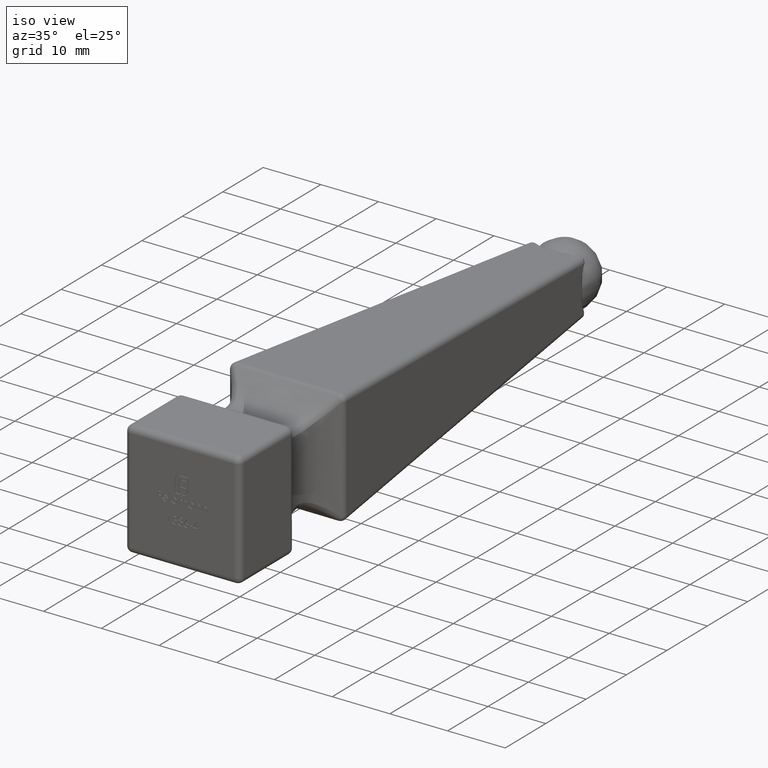
[diagram: clean part render]
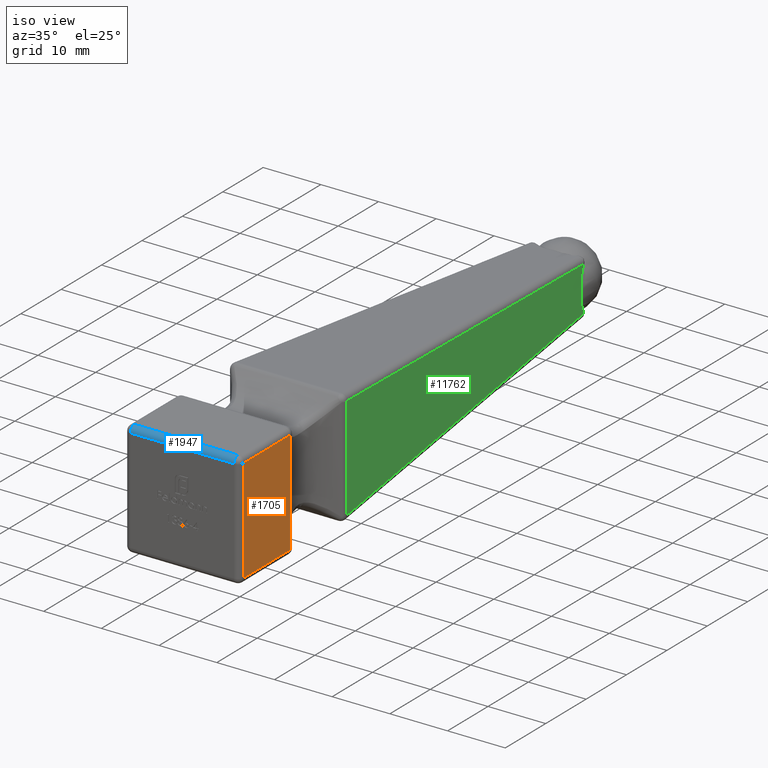
[diagram: same view with three faces highlighted in distinct colors, each labeled with its STEP entity id]
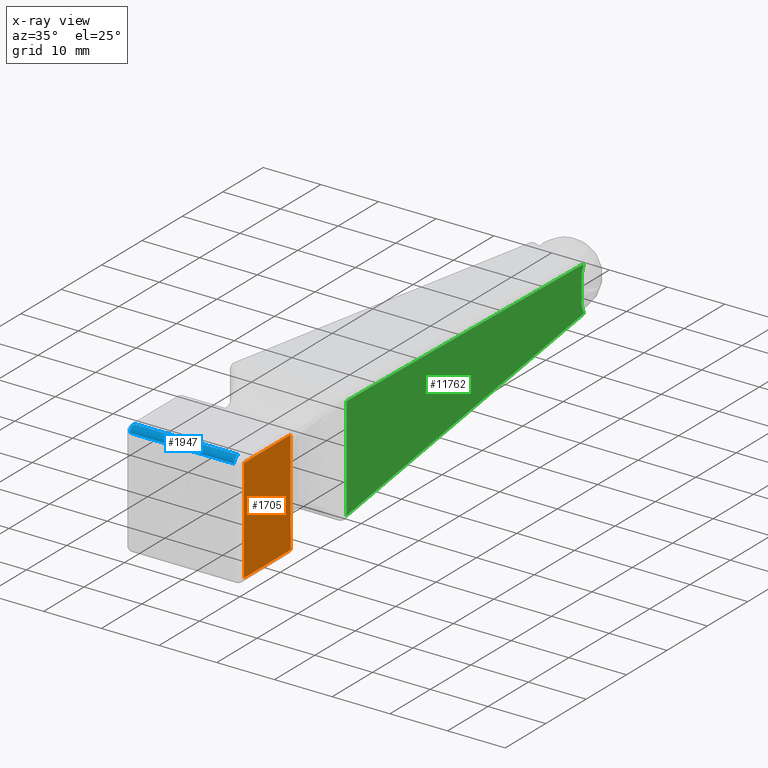
[diagram: x-ray of the same camera — body ghosted, the three highlighted faces saturated]
A machine part, iso view with three faces highlighted in distinct colors.
The next image is the same camera in x-ray (body ghosted, the three faces saturated) — at least one of them is partly hidden behind the body in this view.
Their STEP definitions:

[orange] entity #1705 — the highlighted planar face has unit normal (-1, 0, 0).
#450 = VERTEX_POINT ( 'NONE', #3818 ) ;
#1346 = DIRECTION ( 'NONE',  ( -1.000000000000000000, 0.000000000000000000, 8.673617379884037937E-17 ) ) ;
#1498 = CARTESIAN_POINT ( 'NONE',  ( 10.00000000000000000, -37.42934587424612403, 3.000000000000000888 ) ) ;
#1619 = CARTESIAN_POINT ( 'NONE',  ( 10.00000000000000178, -37.00000000000000711, 9.000000000000000000 ) ) ;
#1655 = ORIENTED_EDGE ( 'NONE', *, *, #13053, .T. ) ;
#1705 = ADVANCED_FACE ( 'NONE', ( #14546 ), #6164, .F. ) ;
#2426 = CARTESIAN_POINT ( 'NONE',  ( 10.00000000000000000, -49.00000000000000000, -9.000000000000001776 ) ) ;
#2587 = CARTESIAN_POINT ( 'NONE',  ( 10.00000000000000000, -37.42934587424612403, -9.000000000000001776 ) ) ;
#2790 = EDGE_CURVE ( 'NONE', #450, #5360, #4234, .T. ) ;
#3652 = B_SPLINE_CURVE_WITH_KNOTS ( 'NONE', 3,
 ( #2587, #13545, #1498, #9943 ),
 .UNSPECIFIED., .F., .F.,
 ( 4, 4 ),
 ( 0.000000000000000000, 0.01800000000000000211 ),
 .UNSPECIFIED. ) ;
#3818 = CARTESIAN_POINT ( 'NONE',  ( 10.00000000000000178, -37.42934587424628745, 9.000000000000000000 ) ) ;
#4234 = LINE ( 'NONE', #1619, #8206 ) ;
#5148 = EDGE_CURVE ( 'NONE', #14671, #11442, #11233, .T. ) ;
#5328 = AXIS2_PLACEMENT_3D ( 'NONE', #8545, #1346, #8601 ) ;
#5360 = VERTEX_POINT ( 'NONE', #6105 ) ;
#6105 = CARTESIAN_POINT ( 'NONE',  ( 10.00000000000000178, -49.00000000000000000, 9.000000000000000000 ) ) ;
#6164 = PLANE ( 'NONE',  #5328 ) ;
#6581 = ORIENTED_EDGE ( 'NONE', *, *, #2790, .T. ) ;
#7312 = DIRECTION ( 'NONE',  ( -8.673617379884037937E-17, 0.000000000000000000, -1.000000000000000000 ) ) ;
#7746 = CARTESIAN_POINT ( 'NONE',  ( 10.00000000000000000, -37.42934587424612403, -9.000000000000001776 ) ) ;
#7898 = EDGE_LOOP ( 'NONE', ( #6581, #12839, #15426, #1655 ) ) ;
#8206 = VECTOR ( 'NONE', #11487, 1000.000000000000000 ) ;
#8518 = EDGE_CURVE ( 'NONE', #5360, #14671, #14365, .T. ) ;
#8545 = CARTESIAN_POINT ( 'NONE',  ( 10.00000000000000000, -37.00000000000000711, -10.00000000000000000 ) ) ;
#8601 = DIRECTION ( 'NONE',  ( 8.673617379884037937E-17, 0.000000000000000000, 1.000000000000000000 ) ) ;
#9114 = CARTESIAN_POINT ( 'NONE',  ( 10.00000000000000000, -37.00000000000000711, -9.000000000000001776 ) ) ;
#9943 = CARTESIAN_POINT ( 'NONE',  ( 10.00000000000000178, -37.42934587424628745, 9.000000000000000000 ) ) ;
#10075 = VECTOR ( 'NONE', #15215, 1000.000000000000000 ) ;
#10790 = VECTOR ( 'NONE', #7312, 1000.000000000000000 ) ;
#11233 = LINE ( 'NONE', #9114, #10075 ) ;
#11442 = VERTEX_POINT ( 'NONE', #7746 ) ;
#11487 = DIRECTION ( 'NONE',  ( 0.000000000000000000, -1.000000000000000000, 0.000000000000000000 ) ) ;
#11992 = CARTESIAN_POINT ( 'NONE',  ( 10.00000000000000000, -49.00000000000000000, -10.00000000000000000 ) ) ;
#12839 = ORIENTED_EDGE ( 'NONE', *, *, #8518, .T. ) ;
#13053 = EDGE_CURVE ( 'NONE', #11442, #450, #3652, .T. ) ;
#13545 = CARTESIAN_POINT ( 'NONE',  ( 9.999999999999998224, -37.42934587424612403, -3.000000000000000888 ) ) ;
#14365 = LINE ( 'NONE', #11992, #10790 ) ;
#14546 = FACE_OUTER_BOUND ( 'NONE', #7898, .T. ) ;
#14671 = VERTEX_POINT ( 'NONE', #2426 ) ;
#15215 = DIRECTION ( 'NONE',  ( -0.000000000000000000, 1.000000000000000000, -0.000000000000000000 ) ) ;
#15426 = ORIENTED_EDGE ( 'NONE', *, *, #5148, .T. ) ;

[blue] entity #1947 — the highlighted cylindrical surface (edge-blend (fillet) strip) has radius 1 mm, axis along (1, -0, 0).
#79 = DIRECTION ( 'NONE',  ( 1.000000000000000000, -0.000000000000000000, 0.000000000000000000 ) ) ;
#898 = ORIENTED_EDGE ( 'NONE', *, *, #9177, .T. ) ;
#1140 = CYLINDRICAL_SURFACE ( 'NONE', #2593, 1.000000000000000888 ) ;
#1212 = DIRECTION ( 'NONE',  ( -1.000000000000000000, 0.000000000000000000, 0.000000000000000000 ) ) ;
#1399 = DIRECTION ( 'NONE',  ( -1.000000000000000000, 0.000000000000000000, -0.000000000000000000 ) ) ;
#1438 = VERTEX_POINT ( 'NONE', #5401 ) ;
#1621 = EDGE_CURVE ( 'NONE', #10757, #1438, #9071, .T. ) ;
#1947 = ADVANCED_FACE ( 'NONE', ( #3926 ), #1140, .T. ) ;
#1985 = AXIS2_PLACEMENT_3D ( 'NONE', #6074, #1212, #11019 ) ;
#2277 = CARTESIAN_POINT ( 'NONE',  ( 9.000000000000003553, -49.00000000000000000, 9.000000000000000000 ) ) ;
#2279 = VECTOR ( 'NONE', #1399, 1000.000000000000000 ) ;
#2593 = AXIS2_PLACEMENT_3D ( 'NONE', #2605, #11192, #11075 ) ;
#2605 = CARTESIAN_POINT ( 'NONE',  ( -9.999999999999998224, -49.00000000000000000, 9.000000000000001776 ) ) ;
#2996 = CARTESIAN_POINT ( 'NONE',  ( -9.000000000000000000, -49.00000000000000000, 10.00000000000000000 ) ) ;
#3926 = FACE_OUTER_BOUND ( 'NONE', #5186, .T. ) ;
#4700 = CIRCLE ( 'NONE', #6387, 0.9999999999999991118 ) ;
#4980 = ORIENTED_EDGE ( 'NONE', *, *, #8323, .F. ) ;
#5186 = EDGE_LOOP ( 'NONE', ( #898, #6773, #4980, #13966 ) ) ;
#5401 = CARTESIAN_POINT ( 'NONE',  ( -9.000000000000000000, -50.00000000000000000, 9.000000000000001776 ) ) ;
#6074 = CARTESIAN_POINT ( 'NONE',  ( -9.000000000000000000, -49.00000000000000000, 9.000000000000001776 ) ) ;
#6275 = CARTESIAN_POINT ( 'NONE',  ( 9.000000000000005329, -49.00000000000000000, 10.00000000000000000 ) ) ;
#6325 = LINE ( 'NONE', #14522, #11098 ) ;
#6387 = AXIS2_PLACEMENT_3D ( 'NONE', #2277, #15652, #8432 ) ;
#6773 = ORIENTED_EDGE ( 'NONE', *, *, #14731, .F. ) ;
#8323 = EDGE_CURVE ( 'NONE', #1438, #11305, #14557, .T. ) ;
#8432 = DIRECTION ( 'NONE',  ( 1.734723475976808672E-15, 0.000000000000000000, 1.000000000000000000 ) ) ;
#8475 = CARTESIAN_POINT ( 'NONE',  ( 9.000000000000003553, -50.00000000000000000, 9.000000000000001776 ) ) ;
#9071 = LINE ( 'NONE', #13490, #2279 ) ;
#9177 = EDGE_CURVE ( 'NONE', #10757, #9694, #4700, .T. ) ;
#9694 = VERTEX_POINT ( 'NONE', #6275 ) ;
#10757 = VERTEX_POINT ( 'NONE', #8475 ) ;
#11019 = DIRECTION ( 'NONE',  ( 0.000000000000000000, 0.000000000000000000, 1.000000000000000000 ) ) ;
#11075 = DIRECTION ( 'NONE',  ( 0.000000000000000000, 0.000000000000000000, -1.000000000000000000 ) ) ;
#11098 = VECTOR ( 'NONE', #79, 1000.000000000000000 ) ;
#11192 = DIRECTION ( 'NONE',  ( 1.000000000000000000, -0.000000000000000000, 0.000000000000000000 ) ) ;
#11305 = VERTEX_POINT ( 'NONE', #2996 ) ;
#13490 = CARTESIAN_POINT ( 'NONE',  ( -0.000000000000000000, -50.00000000000000000, 9.000000000000001776 ) ) ;
#13966 = ORIENTED_EDGE ( 'NONE', *, *, #1621, .F. ) ;
#14522 = CARTESIAN_POINT ( 'NONE',  ( -9.999999999999998224, -49.00000000000000000, 10.00000000000000000 ) ) ;
#14557 = CIRCLE ( 'NONE', #1985, 1.000000000000000888 ) ;
#14731 = EDGE_CURVE ( 'NONE', #11305, #9694, #6325, .T. ) ;
#15652 = DIRECTION ( 'NONE',  ( -1.000000000000000000, 0.000000000000000000, 1.734723475976805319E-15 ) ) ;

[green] entity #11762 — the highlighted planar face has unit normal (-0.997, -0.0768, 0).
#7 = CARTESIAN_POINT ( 'NONE',  ( 4.928960308523496536, 41.82599599512769828, 2.194300920624155715 ) ) ;
#180 = LINE ( 'NONE', #9033, #11877 ) ;
#246 = DIRECTION ( 'NONE',  ( 0.07680945347119648436, -0.9970457902511078441, 0.000000000000000000 ) ) ;
#483 = ORIENTED_EDGE ( 'NONE', *, *, #14414, .T. ) ;
#596 = B_SPLINE_CURVE_WITH_KNOTS ( 'NONE', 3,
 ( #11590, #4482, #10475, #8076 ),
 .UNSPECIFIED., .F., .F.,
 ( 4, 4 ),
 ( 0.000000000000000000, 0.01793295388004015334 ),
 .UNSPECIFIED. ) ;
#744 = EDGE_LOOP ( 'NONE', ( #9778, #483, #5269, #931, #10547, #2545 ) ) ;
#931 = ORIENTED_EDGE ( 'NONE', *, *, #7704, .T. ) ;
#1054 = VECTOR ( 'NONE', #11264, 1000.000000000000227 ) ;
#1077 = CARTESIAN_POINT ( 'NONE',  ( 4.927754632640557020, 41.84164659553121624, -0.4540110121071893601 ) ) ;
#1172 = CARTESIAN_POINT ( 'NONE',  ( 4.897643771254954537, 42.23250873851742426, 3.480927437136561053 ) ) ;
#1357 = CARTESIAN_POINT ( 'NONE',  ( 9.963522730270472749, -23.52649697947249408, 8.966476940019367348 ) ) ;
#1762 = CARTESIAN_POINT ( 'NONE',  ( 4.882580872235005032, 42.42803675464175939, -3.885535081983898298 ) ) ;
#2111 = CARTESIAN_POINT ( 'NONE',  ( 4.931212774338244564, 41.79675725618621840, 0.8702293358454280536 ) ) ;
#2263 = CARTESIAN_POINT ( 'NONE',  ( 4.910315528437485533, 42.06801958278263243, 3.062738641251135707 ) ) ;
#2267 = CARTESIAN_POINT ( 'NONE',  ( 4.927510500191320197, 41.84481562251652775, 0.4275323054756585694 ) ) ;
#2545 = ORIENTED_EDGE ( 'NONE', *, *, #6176, .T. ) ;
#3658 = CARTESIAN_POINT ( 'NONE',  ( 4.920524115017808953, 41.93550427621111965, -2.633345761847323718 ) ) ;
#3870 = EDGE_CURVE ( 'NONE', #9449, #11800, #13884, .T. ) ;
#4172 = CARTESIAN_POINT ( 'NONE',  ( 4.920524115017808953, 41.93550427621111965, -2.633345761847323718 ) ) ;
#4482 = CARTESIAN_POINT ( 'NONE',  ( 9.963522730271185068, -23.52649697948169560, 2.988825646673357816 ) ) ;
#4503 = FACE_OUTER_BOUND ( 'NONE', #744, .T. ) ;
#4570 = CARTESIAN_POINT ( 'NONE',  ( 4.925353011604520326, 41.87282148397977721, -0.2354914841094574440 ) ) ;
#5269 = ORIENTED_EDGE ( 'NONE', *, *, #3870, .T. ) ;
#5308 = CARTESIAN_POINT ( 'NONE',  ( 4.920524115017808953, 41.93550427621111965, 2.633345761847321498 ) ) ;
#5374 = AXIS2_PLACEMENT_3D ( 'NONE', #14580, #6214, #246 ) ;
#6176 = EDGE_CURVE ( 'NONE', #8920, #7909, #11145, .T. ) ;
#6214 = DIRECTION ( 'NONE',  ( -0.9970457902511078441, -0.07680945347119648436, 0.000000000000000000 ) ) ;
#6675 = CARTESIAN_POINT ( 'NONE',  ( 4.932736191512270274, 41.77698212940803302, -1.111055935669662542 ) ) ;
#6935 = CARTESIAN_POINT ( 'NONE',  ( 4.882580872235000591, 42.42803675464179491, 3.885535081983895189 ) ) ;
#6992 = CARTESIAN_POINT ( 'NONE',  ( 4.925154176188716093, 41.87540252062723312, 0.2060317910209795988 ) ) ;
#7410 = CARTESIAN_POINT ( 'NONE',  ( 4.920524115017808953, 41.93550427621111965, 2.633345761847321498 ) ) ;
#7704 = EDGE_CURVE ( 'NONE', #11800, #8833, #10851, .T. ) ;
#7909 = VERTEX_POINT ( 'NONE', #9300 ) ;
#8076 = CARTESIAN_POINT ( 'NONE',  ( 9.963522730271186845, -23.52649697948171337, -8.966476940020077890 ) ) ;
#8314 = CARTESIAN_POINT ( 'NONE',  ( 4.932652180766491590, 41.77807265351188448, 1.091453970633145643 ) ) ;
#8526 = CARTESIAN_POINT ( 'NONE',  ( 4.932827066982139463, 41.77580249590491235, 1.753881240206908387 ) ) ;
#8757 = CARTESIAN_POINT ( 'NONE',  ( 9.963522730271186845, -23.52649697948171337, -8.966476940020077890 ) ) ;
#8833 = VERTEX_POINT ( 'NONE', #3658 ) ;
#8920 = VERTEX_POINT ( 'NONE', #5308 ) ;
#9033 = CARTESIAN_POINT ( 'NONE',  ( 10.00584776321182900, -24.07590846476892921, 9.008801972960721827 ) ) ;
#9300 = CARTESIAN_POINT ( 'NONE',  ( 4.882580872235000591, 42.42803675464179491, 3.885535081983895189 ) ) ;
#9449 = VERTEX_POINT ( 'NONE', #8757 ) ;
#9490 = EDGE_CURVE ( 'NONE', #8833, #8920, #14293, .T. ) ;
#9778 = ORIENTED_EDGE ( 'NONE', *, *, #11406, .T. ) ;
#9834 = VERTEX_POINT ( 'NONE', #1357 ) ;
#10456 = CARTESIAN_POINT ( 'NONE',  ( 4.920524115017808953, 41.93550427621111965, -2.633345761847323718 ) ) ;
#10475 = CARTESIAN_POINT ( 'NONE',  ( 9.963522730271185068, -23.52649697948169560, -2.988825646673361369 ) ) ;
#10547 = ORIENTED_EDGE ( 'NONE', *, *, #9490, .T. ) ;
#10851 =( BOUNDED_CURVE ( )  B_SPLINE_CURVE ( 3, ( #1762, #15246, #15296, #4172 ),
 .UNSPECIFIED., .F., .T. ) 
 B_SPLINE_CURVE_WITH_KNOTS ( ( 4, 4 ),
 ( 5.833024517007623366, 5.983847480775862593 ),
 .UNSPECIFIED. ) 
 CURVE ( )  GEOMETRIC_REPRESENTATION_ITEM ( )  RATIONAL_B_SPLINE_CURVE ( ( 1.000000000000000000, 0.9981052676501827037, 0.9981052676501827037, 1.000000000000000000 ) ) 
 REPRESENTATION_ITEM ( '' )  );
#11145 =( BOUNDED_CURVE ( )  B_SPLINE_CURVE ( 3, ( #15543, #2263, #1172, #6935 ),
 .UNSPECIFIED., .F., .F. ) 
 B_SPLINE_CURVE_WITH_KNOTS ( ( 4, 4 ),
 ( 0.2993378264037234726, 0.4501607901719646421 ),
 .UNSPECIFIED. ) 
 CURVE ( )  GEOMETRIC_REPRESENTATION_ITEM ( )  RATIONAL_B_SPLINE_CURVE ( ( 1.000000000000000000, 0.9981052676501827037, 0.9981052676501827037, 1.000000000000000000 ) ) 
 REPRESENTATION_ITEM ( '' )  );
#11171 = CARTESIAN_POINT ( 'NONE',  ( 4.882580872235005032, 42.42803675464175939, -3.885535081983898298 ) ) ;
#11264 = DIRECTION ( 'NONE',  ( -0.07658387504978757254, 0.9941176088193574012, 0.07658387504978755866 ) ) ;
#11391 = DIRECTION ( 'NONE',  ( 0.07658387504978757254, -0.9941176088193574012, 0.07658387504978755866 ) ) ;
#11406 = EDGE_CURVE ( 'NONE', #7909, #9834, #180, .T. ) ;
#11590 = CARTESIAN_POINT ( 'NONE',  ( 9.963522730270472749, -23.52649697947249408, 8.966476940019367348 ) ) ;
#11762 = ADVANCED_FACE ( 'NONE', ( #4503 ), #13486, .F. ) ;
#11800 = VERTEX_POINT ( 'NONE', #11171 ) ;
#11877 = VECTOR ( 'NONE', #11391, 1000.000000000000227 ) ;
#11982 = CARTESIAN_POINT ( 'NONE',  ( 4.933427262987195583, 41.76801149007005876, 1.533270275454277298 ) ) ;
#12378 = CARTESIAN_POINT ( 'NONE',  ( 4.719044432430735014, 44.55086554056257597, -3.721998642179627836 ) ) ;
#12750 = CARTESIAN_POINT ( 'NONE',  ( 4.933400163844997799, 41.76836325778127446, -1.548447819134418202 ) ) ;
#12902 = CARTESIAN_POINT ( 'NONE',  ( 4.928838550005011143, 41.82757651435802160, -2.203033280913992531 ) ) ;
#12950 = CARTESIAN_POINT ( 'NONE',  ( 4.932755843851248656, 41.77672702693090656, -1.766879838677430259 ) ) ;
#13486 = PLANE ( 'NONE',  #5374 ) ;
#13884 = LINE ( 'NONE', #12378, #1054 ) ;
#14293 = B_SPLINE_CURVE_WITH_KNOTS ( 'NONE', 3,
 ( #10456, #15282, #12902, #12950, #12750, #6675, #15230, #1077, #4570, #6992, #2267, #2111, #8314, #11982, #8526, #7, #14501, #7410 ),
 .UNSPECIFIED., .F., .F.,
 ( 4, 2, 2, 2, 2, 2, 2, 2, 4 ),
 ( 0.000000000000000000, 0.0006637534103062858000, 0.001327506820612571600, 0.001991260230918857725, 0.002655013641225143200, 0.003318767051531429108, 0.003982520461837715450, 0.004646273872144001359, 0.005310027282450285532 ),
 .UNSPECIFIED. ) ;
#14414 = EDGE_CURVE ( 'NONE', #9834, #9449, #596, .T. ) ;
#14501 = CARTESIAN_POINT ( 'NONE',  ( 4.925736034419909259, 41.86784955320309365, 2.414122359892552971 ) ) ;
#14580 = CARTESIAN_POINT ( 'NONE',  ( 4.799999999999999822, 43.50000000000000000, 10.00000000000000000 ) ) ;
#15230 = CARTESIAN_POINT ( 'NONE',  ( 4.931369489501420844, 41.79472297281809290, -0.8919895999203627523 ) ) ;
#15246 = CARTESIAN_POINT ( 'NONE',  ( 4.897643771254953649, 42.23250873851741716, -3.480927437136553504 ) ) ;
#15282 = CARTESIAN_POINT ( 'NONE',  ( 4.925557749911419592, 41.87016382326520869, -2.421621350849882059 ) ) ;
#15296 = CARTESIAN_POINT ( 'NONE',  ( 4.910315528437485533, 42.06801958278263243, -3.062738641251133931 ) ) ;
#15543 = CARTESIAN_POINT ( 'NONE',  ( 4.920524115017808953, 41.93550427621111965, 2.633345761847321498 ) ) ;